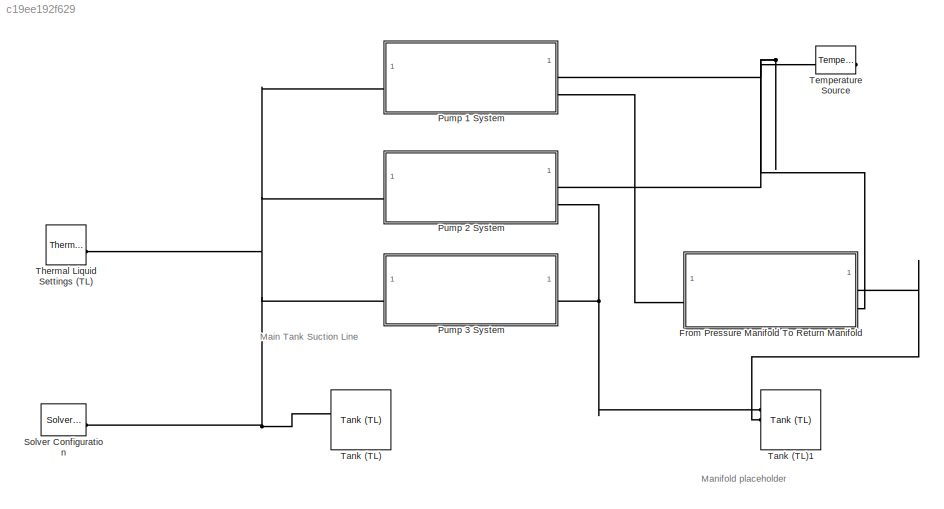
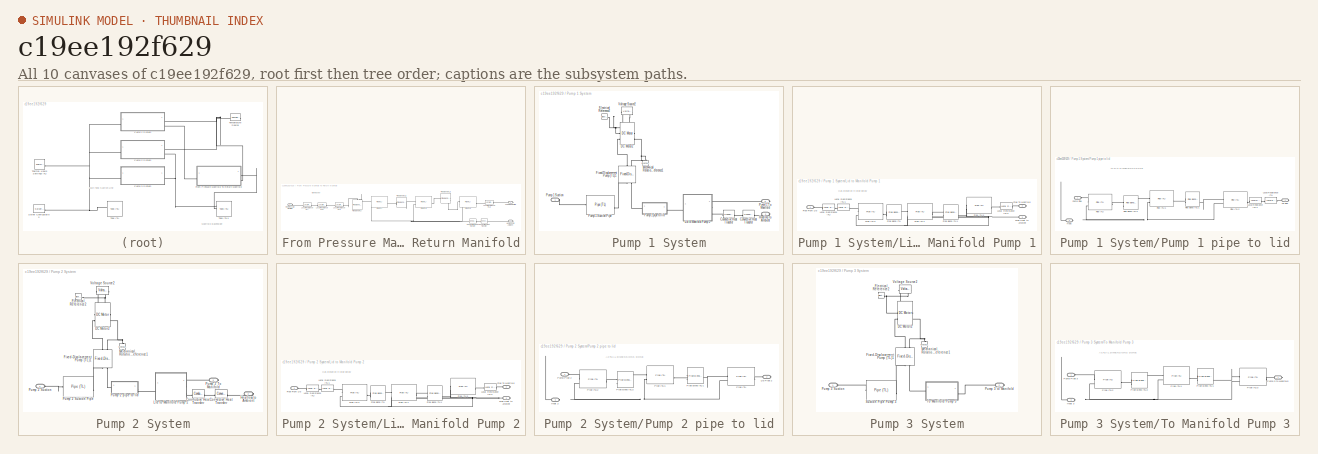
[diagram: thumbnail index - all 10 canvases of the model, root first then tree order]
MODEL slx_c19ee192f629
KIND model
CONFIG AbsTol = 1e-3
CONFIG EnableMultiTasking = off
CONFIG FixedStep = auto
CONFIG MaxStep = auto
CONFIG MinStep = auto
CONFIG RelTol = 1e-3
CONFIG SampleTimeConstraint = Unconstrained
CONFIG SolverName = VariableStepAuto
CONFIG StartTime = 0.0
CONFIG StopTime = 100
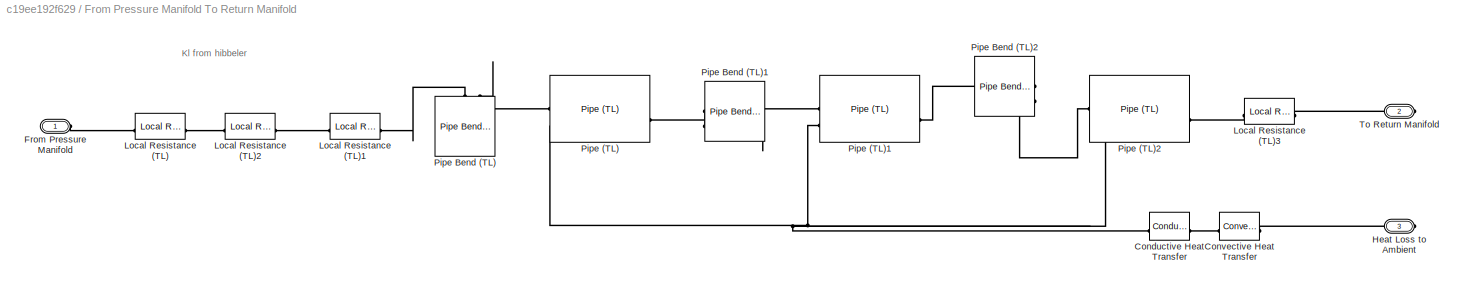
BLOCK [SubSystem] From Pressure Manifold To Return Manifold
BLOCK [Reference] From Pressure Manifold To Return Manifold/Conductive Heat Transfer  REF=fl_lib/Thermal/Thermal Elements/Conductive Heat
Transfer
  SourceBlock = fl_lib/Thermal/Thermal Elements/Conductive Heat\nTransfer
  SourceType = Conductive Heat\nTransfer
BLOCK [Reference] From Pressure Manifold To Return Manifold/Convective Heat Transfer  REF=fl_lib/Thermal/Thermal Elements/Convective Heat
Transfer
  SourceBlock = fl_lib/Thermal/Thermal Elements/Convective Heat\nTransfer
  SourceType = Convective Heat\nTransfer
BLOCK [PMIOPort] From Pressure Manifold To Return Manifold/From Pressure Manifold
  Side = Left
BLOCK [PMIOPort] From Pressure Manifold To Return Manifold/Heat Loss to Ambient
  NameLocation = top
  Port = 3
  Side = Right
BLOCK [Reference] From Pressure Manifold To Return Manifold/Local Resistance (TL)  REF=SimscapeFluids_lib/Thermal Liquid/Pipes & Fittings/Local Resistance
(TL)
  SourceBlock = SimscapeFluids_lib/Thermal Liquid/Pipes & Fittings/Local Resistance\n(TL)
  SourceType = Local Resistance\n(TL)
BLOCK [Reference] From Pressure Manifold To Return Manifold/Local Resistance (TL)1  REF=SimscapeFluids_lib/Thermal Liquid/Pipes & Fittings/Local Resistance
(TL)
  SourceBlock = SimscapeFluids_lib/Thermal Liquid/Pipes & Fittings/Local Resistance\n(TL)
  SourceType = Local Resistance\n(TL)
BLOCK [Reference] From Pressure Manifold To Return Manifold/Local Resistance (TL)2  REF=SimscapeFluids_lib/Thermal Liquid/Pipes & Fittings/Local Resistance
(TL)
  SourceBlock = SimscapeFluids_lib/Thermal Liquid/Pipes & Fittings/Local Resistance\n(TL)
  SourceType = Local Resistance\n(TL)
BLOCK [Reference] From Pressure Manifold To Return Manifold/Local Resistance (TL)3  REF=SimscapeFluids_lib/Thermal Liquid/Pipes & Fittings/Local Resistance
(TL)
  SourceBlock = SimscapeFluids_lib/Thermal Liquid/Pipes & Fittings/Local Resistance\n(TL)
  SourceType = Local Resistance\n(TL)
BLOCK [Reference] From Pressure Manifold To Return Manifold/Pipe (TL)  REF=SimscapeFluids_lib/Thermal Liquid/Pipes & Fittings/Pipe (TL)
  SourceBlock = SimscapeFluids_lib/Thermal Liquid/Pipes & Fittings/Pipe (TL)
  SourceType = Pipe (TL)
BLOCK [Reference] From Pressure Manifold To Return Manifold/Pipe (TL)1  REF=SimscapeFluids_lib/Thermal Liquid/Pipes & Fittings/Pipe (TL)
  SourceBlock = SimscapeFluids_lib/Thermal Liquid/Pipes & Fittings/Pipe (TL)
  SourceType = Pipe (TL)
BLOCK [Reference] From Pressure Manifold To Return Manifold/Pipe (TL)2  REF=SimscapeFluids_lib/Thermal Liquid/Pipes & Fittings/Pipe (TL)
  SourceBlock = SimscapeFluids_lib/Thermal Liquid/Pipes & Fittings/Pipe (TL)
  SourceType = Pipe (TL)
BLOCK [Reference] From Pressure Manifold To Return Manifold/Pipe Bend (TL)  REF=SimscapeFluids_lib/Thermal Liquid/Pipes & Fittings/Pipe Bend (TL)
  NameLocation = left
  SourceBlock = SimscapeFluids_lib/Thermal Liquid/Pipes & Fittings/Pipe Bend (TL)
  SourceType = Pipe Bend (TL)
BLOCK [Reference] From Pressure Manifold To Return Manifold/Pipe Bend (TL)1  REF=SimscapeFluids_lib/Thermal Liquid/Pipes & Fittings/Pipe Bend (TL)
  SourceBlock = SimscapeFluids_lib/Thermal Liquid/Pipes & Fittings/Pipe Bend (TL)
  SourceType = Pipe Bend (TL)
BLOCK [Reference] From Pressure Manifold To Return Manifold/Pipe Bend (TL)2  REF=SimscapeFluids_lib/Thermal Liquid/Pipes & Fittings/Pipe Bend (TL)
  NameLocation = top
  SourceBlock = SimscapeFluids_lib/Thermal Liquid/Pipes & Fittings/Pipe Bend (TL)
  SourceType = Pipe Bend (TL)
BLOCK [PMIOPort] From Pressure Manifold To Return Manifold/To Return Manifold
  NameLocation = top
  Port = 2
  Side = Right
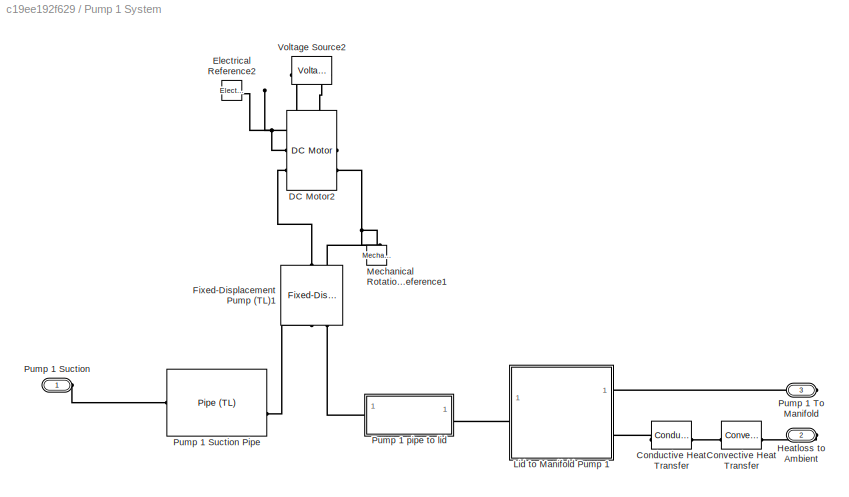
BLOCK [SubSystem] Pump 1 System
BLOCK [Reference] Pump 1 System/Conductive Heat Transfer  REF=fl_lib/Thermal/Thermal Elements/Conductive Heat
Transfer
  SourceBlock = fl_lib/Thermal/Thermal Elements/Conductive Heat\nTransfer
  SourceType = Conductive Heat\nTransfer
BLOCK [Reference] Pump 1 System/Convective Heat Transfer  REF=fl_lib/Thermal/Thermal Elements/Convective Heat
Transfer
  SourceBlock = fl_lib/Thermal/Thermal Elements/Convective Heat\nTransfer
  SourceType = Convective Heat\nTransfer
BLOCK [Reference] Pump 1 System/DC Motor2  REF=ee_lib/Electromechanical/Brushed Motors/DC Motor
  SourceBlock = ee_lib/Electromechanical/Brushed Motors/DC Motor
  SourceType = DC Motor
BLOCK [Reference] Pump 1 System/Electrical Reference2  REF=fl_lib/Electrical/Electrical Elements/Electrical Reference
  SourceBlock = fl_lib/Electrical/Electrical Elements/Electrical Reference
  SourceType = Electrical Reference
BLOCK [Reference] Pump 1 System/Fixed-Displacement Pump (TL)1  REF=SimscapeFluids_lib/Thermal Liquid/Pumps & Motors/Fixed-Displacement
Pump (TL)
  NameLocation = left
  SourceBlock = SimscapeFluids_lib/Thermal Liquid/Pumps & Motors/Fixed-Displacement\nPump (TL)
  SourceType = Fixed-Displacement\nPump (TL)
BLOCK [PMIOPort] Pump 1 System/Heatloss to Ambient
  Port = 2
  Side = Right
BLOCK [SubSystem] Pump 1 System/Lid to Manifold Pump 1
BLOCK [Reference] Pump 1 System/Lid to Manifold Pump 1/Local Resistance (TL)  REF=SimscapeFluids_lib/Thermal Liquid/Pipes & Fittings/Local Resistance
(TL)
  SourceBlock = SimscapeFluids_lib/Thermal Liquid/Pipes & Fittings/Local Resistance\n(TL)
  SourceType = Local Resistance\n(TL)
BLOCK [Reference] Pump 1 System/Lid to Manifold Pump 1/Local Resistance (TL)1  REF=SimscapeFluids_lib/Thermal Liquid/Pipes & Fittings/Local Resistance
(TL)
  SourceBlock = SimscapeFluids_lib/Thermal Liquid/Pipes & Fittings/Local Resistance\n(TL)
  SourceType = Local Resistance\n(TL)
BLOCK [Reference] Pump 1 System/Lid to Manifold Pump 1/Local Resistance (TL)2  REF=SimscapeFluids_lib/Thermal Liquid/Pipes & Fittings/Local Resistance
(TL)
  SourceBlock = SimscapeFluids_lib/Thermal Liquid/Pipes & Fittings/Local Resistance\n(TL)
  SourceType = Local Resistance\n(TL)
BLOCK [Reference] Pump 1 System/Lid to Manifold Pump 1/Pipe (TL)1  REF=SimscapeFluids_lib/Thermal Liquid/Pipes & Fittings/Pipe (TL)
  SourceBlock = SimscapeFluids_lib/Thermal Liquid/Pipes & Fittings/Pipe (TL)
  SourceType = Pipe (TL)
BLOCK [Reference] Pump 1 System/Lid to Manifold Pump 1/Pipe (TL)2  REF=SimscapeFluids_lib/Thermal Liquid/Pipes & Fittings/Pipe (TL)
  SourceBlock = SimscapeFluids_lib/Thermal Liquid/Pipes & Fittings/Pipe (TL)
  SourceType = Pipe (TL)
BLOCK [Reference] Pump 1 System/Lid to Manifold Pump 1/Pipe (TL)3  REF=SimscapeFluids_lib/Thermal Liquid/Pipes & Fittings/Pipe (TL)
  SourceBlock = SimscapeFluids_lib/Thermal Liquid/Pipes & Fittings/Pipe (TL)
  SourceType = Pipe (TL)
BLOCK [Reference] Pump 1 System/Lid to Manifold Pump 1/Pipe Bend (TL)  REF=SimscapeFluids_lib/Thermal Liquid/Pipes & Fittings/Pipe Bend (TL)
  SourceBlock = SimscapeFluids_lib/Thermal Liquid/Pipes & Fittings/Pipe Bend (TL)
  SourceType = Pipe Bend (TL)
BLOCK [Reference] Pump 1 System/Lid to Manifold Pump 1/Pipe Bend (TL)1  REF=SimscapeFluids_lib/Thermal Liquid/Pipes & Fittings/Pipe Bend (TL)
  SourceBlock = SimscapeFluids_lib/Thermal Liquid/Pipes & Fittings/Pipe Bend (TL)
  SourceType = Pipe Bend (TL)
BLOCK [PMIOPort] Pump 1 System/Lid to Manifold Pump 1/Pipe From Lid
  Side = Left
BLOCK [PMIOPort] Pump 1 System/Lid to Manifold Pump 1/Pipe Heat to Ambient
  Port = 3
  Side = Right
BLOCK [PMIOPort] Pump 1 System/Lid to Manifold Pump 1/Pipe To Manifold
  Port = 2
  Side = Right
BLOCK [Reference] Pump 1 System/Mechanical Rotational Reference1  REF=fl_lib/Mechanical/Rotational Elements/Mechanical
Rotational Reference
  NameLocation = right
  SourceBlock = fl_lib/Mechanical/Rotational Elements/Mechanical\nRotational Reference
  SourceType = Mechanical\nRotational Reference
BLOCK [PMIOPort] Pump 1 System/Pump 1 Suction
  Side = Left
BLOCK [Reference] Pump 1 System/Pump 1 Suction Pipe  REF=SimscapeFluids_lib/Thermal Liquid/Pipes & Fittings/Pipe (TL)
  SourceBlock = SimscapeFluids_lib/Thermal Liquid/Pipes & Fittings/Pipe (TL)
  SourceType = Pipe (TL)
BLOCK [PMIOPort] Pump 1 System/Pump 1 To Manifold
  Port = 3
  Side = Right
BLOCK [SubSystem] Pump 1 System/Pump 1 pipe to lid
BLOCK [PMIOPort] Pump 1 System/Pump 1 pipe to lid/Heat
  Port = 3
  Side = Left
BLOCK [PMIOPort] Pump 1 System/Pump 1 pipe to lid/Lid Pipe
  Port = 2
  Side = Right
BLOCK [Reference] Pump 1 System/Pump 1 pipe to lid/Local Resistance (TL)  REF=SimscapeFluids_lib/Thermal Liquid/Pipes & Fittings/Local Resistance
(TL)
  SourceBlock = SimscapeFluids_lib/Thermal Liquid/Pipes & Fittings/Local Resistance\n(TL)
  SourceType = Local Resistance\n(TL)
BLOCK [Reference] Pump 1 System/Pump 1 pipe to lid/Local Resistance (TL)1  REF=SimscapeFluids_lib/Thermal Liquid/Pipes & Fittings/Local Resistance
(TL)
  SourceBlock = SimscapeFluids_lib/Thermal Liquid/Pipes & Fittings/Local Resistance\n(TL)
  SourceType = Local Resistance\n(TL)
BLOCK [Reference] Pump 1 System/Pump 1 pipe to lid/Pipe (TL)  REF=SimscapeFluids_lib/Thermal Liquid/Pipes & Fittings/Pipe (TL)
  SourceBlock = SimscapeFluids_lib/Thermal Liquid/Pipes & Fittings/Pipe (TL)
  SourceType = Pipe (TL)
BLOCK [Reference] Pump 1 System/Pump 1 pipe to lid/Pipe (TL)1  REF=SimscapeFluids_lib/Thermal Liquid/Pipes & Fittings/Pipe (TL)
  SourceBlock = SimscapeFluids_lib/Thermal Liquid/Pipes & Fittings/Pipe (TL)
  SourceType = Pipe (TL)
BLOCK [Reference] Pump 1 System/Pump 1 pipe to lid/Pipe (TL)2  REF=SimscapeFluids_lib/Thermal Liquid/Pipes & Fittings/Pipe (TL)
  SourceBlock = SimscapeFluids_lib/Thermal Liquid/Pipes & Fittings/Pipe (TL)
  SourceType = Pipe (TL)
BLOCK [Reference] Pump 1 System/Pump 1 pipe to lid/Pipe Bend (TL)1  REF=SimscapeFluids_lib/Thermal Liquid/Pipes & Fittings/Pipe Bend (TL)
  SourceBlock = SimscapeFluids_lib/Thermal Liquid/Pipes & Fittings/Pipe Bend (TL)
  SourceType = Pipe Bend (TL)
BLOCK [Reference] Pump 1 System/Pump 1 pipe to lid/Pipe Bend (TL)2  REF=SimscapeFluids_lib/Thermal Liquid/Pipes & Fittings/Pipe Bend (TL)
  SourceBlock = SimscapeFluids_lib/Thermal Liquid/Pipes & Fittings/Pipe Bend (TL)
  SourceType = Pipe Bend (TL)
BLOCK [PMIOPort] Pump 1 System/Pump 1 pipe to lid/Pump Pipe
  Side = Left
BLOCK [Reference] Pump 1 System/Voltage Source2  REF=ee_lib/Sources/Voltage Source
  NameLocation = top
  SourceBlock = ee_lib/Sources/Voltage Source
  SourceType = Voltage Source
BLOCK [SubSystem] Pump 2 System
BLOCK [Reference] Pump 2 System/Conductive Heat Transfer  REF=fl_lib/Thermal/Thermal Elements/Conductive Heat
Transfer
  SourceBlock = fl_lib/Thermal/Thermal Elements/Conductive Heat\nTransfer
  SourceType = Conductive Heat\nTransfer
BLOCK [Reference] Pump 2 System/Convective Heat Transfer  REF=fl_lib/Thermal/Thermal Elements/Convective Heat
Transfer
  SourceBlock = fl_lib/Thermal/Thermal Elements/Convective Heat\nTransfer
  SourceType = Convective Heat\nTransfer
BLOCK [Reference] Pump 2 System/DC Motor2  REF=ee_lib/Electromechanical/Brushed Motors/DC Motor
  SourceBlock = ee_lib/Electromechanical/Brushed Motors/DC Motor
  SourceType = DC Motor
BLOCK [Reference] Pump 2 System/Electrical Reference2  REF=fl_lib/Electrical/Electrical Elements/Electrical Reference
  SourceBlock = fl_lib/Electrical/Electrical Elements/Electrical Reference
  SourceType = Electrical Reference
BLOCK [Reference] Pump 2 System/Fixed-Displacement Pump (TL)1  REF=SimscapeFluids_lib/Thermal Liquid/Pumps & Motors/Fixed-Displacement
Pump (TL)
  NameLocation = left
  SourceBlock = SimscapeFluids_lib/Thermal Liquid/Pumps & Motors/Fixed-Displacement\nPump (TL)
  SourceType = Fixed-Displacement\nPump (TL)
BLOCK [PMIOPort] Pump 2 System/Heatloss to Ambient
  Port = 2
  Side = Right
BLOCK [SubSystem] Pump 2 System/Lid to Manifold Pump 2
BLOCK [Reference] Pump 2 System/Lid to Manifold Pump 2/Local Resistance (TL)  REF=SimscapeFluids_lib/Thermal Liquid/Pipes & Fittings/Local Resistance
(TL)
  SourceBlock = SimscapeFluids_lib/Thermal Liquid/Pipes & Fittings/Local Resistance\n(TL)
  SourceType = Local Resistance\n(TL)
BLOCK [Reference] Pump 2 System/Lid to Manifold Pump 2/Local Resistance (TL)1  REF=SimscapeFluids_lib/Thermal Liquid/Pipes & Fittings/Local Resistance
(TL)
  SourceBlock = SimscapeFluids_lib/Thermal Liquid/Pipes & Fittings/Local Resistance\n(TL)
  SourceType = Local Resistance\n(TL)
BLOCK [Reference] Pump 2 System/Lid to Manifold Pump 2/Local Resistance (TL)2  REF=SimscapeFluids_lib/Thermal Liquid/Pipes & Fittings/Local Resistance
(TL)
  SourceBlock = SimscapeFluids_lib/Thermal Liquid/Pipes & Fittings/Local Resistance\n(TL)
  SourceType = Local Resistance\n(TL)
BLOCK [Reference] Pump 2 System/Lid to Manifold Pump 2/Pipe (TL)1  REF=SimscapeFluids_lib/Thermal Liquid/Pipes & Fittings/Pipe (TL)
  SourceBlock = SimscapeFluids_lib/Thermal Liquid/Pipes & Fittings/Pipe (TL)
  SourceType = Pipe (TL)
BLOCK [Reference] Pump 2 System/Lid to Manifold Pump 2/Pipe (TL)2  REF=SimscapeFluids_lib/Thermal Liquid/Pipes & Fittings/Pipe (TL)
  SourceBlock = SimscapeFluids_lib/Thermal Liquid/Pipes & Fittings/Pipe (TL)
  SourceType = Pipe (TL)
BLOCK [Reference] Pump 2 System/Lid to Manifold Pump 2/Pipe (TL)3  REF=SimscapeFluids_lib/Thermal Liquid/Pipes & Fittings/Pipe (TL)
  SourceBlock = SimscapeFluids_lib/Thermal Liquid/Pipes & Fittings/Pipe (TL)
  SourceType = Pipe (TL)
BLOCK [Reference] Pump 2 System/Lid to Manifold Pump 2/Pipe Bend (TL)  REF=SimscapeFluids_lib/Thermal Liquid/Pipes & Fittings/Pipe Bend (TL)
  SourceBlock = SimscapeFluids_lib/Thermal Liquid/Pipes & Fittings/Pipe Bend (TL)
  SourceType = Pipe Bend (TL)
BLOCK [Reference] Pump 2 System/Lid to Manifold Pump 2/Pipe Bend (TL)1  REF=SimscapeFluids_lib/Thermal Liquid/Pipes & Fittings/Pipe Bend (TL)
  SourceBlock = SimscapeFluids_lib/Thermal Liquid/Pipes & Fittings/Pipe Bend (TL)
  SourceType = Pipe Bend (TL)
BLOCK [PMIOPort] Pump 2 System/Lid to Manifold Pump 2/Pipe From Lid
  Side = Left
BLOCK [PMIOPort] Pump 2 System/Lid to Manifold Pump 2/Pipe Heat to Ambient
  Port = 3
  Side = Right
BLOCK [PMIOPort] Pump 2 System/Lid to Manifold Pump 2/Pipe To Manifold
  Port = 2
  Side = Right
BLOCK [Reference] Pump 2 System/Mechanical Rotational Reference1  REF=fl_lib/Mechanical/Rotational Elements/Mechanical
Rotational Reference
  NameLocation = right
  SourceBlock = fl_lib/Mechanical/Rotational Elements/Mechanical\nRotational Reference
  SourceType = Mechanical\nRotational Reference
BLOCK [PMIOPort] Pump 2 System/Pump 2 Suction
  Side = Left
BLOCK [Reference] Pump 2 System/Pump 2 Suction Pipe  REF=SimscapeFluids_lib/Thermal Liquid/Pipes & Fittings/Pipe (TL)
  SourceBlock = SimscapeFluids_lib/Thermal Liquid/Pipes & Fittings/Pipe (TL)
  SourceType = Pipe (TL)
BLOCK [PMIOPort] Pump 2 System/Pump 2 To Manifold
  Port = 3
  Side = Right
BLOCK [SubSystem] Pump 2 System/Pump 2 pipe to lid
BLOCK [PMIOPort] Pump 2 System/Pump 2 pipe to lid/Heat 2
  Port = 3
  Side = Left
BLOCK [PMIOPort] Pump 2 System/Pump 2 pipe to lid/Lid Pipe 2
  Port = 2
  Side = Right
BLOCK [Reference] Pump 2 System/Pump 2 pipe to lid/Pipe (TL)  REF=SimscapeFluids_lib/Thermal Liquid/Pipes & Fittings/Pipe (TL)
  SourceBlock = SimscapeFluids_lib/Thermal Liquid/Pipes & Fittings/Pipe (TL)
  SourceType = Pipe (TL)
BLOCK [Reference] Pump 2 System/Pump 2 pipe to lid/Pipe (TL)1  REF=SimscapeFluids_lib/Thermal Liquid/Pipes & Fittings/Pipe (TL)
  SourceBlock = SimscapeFluids_lib/Thermal Liquid/Pipes & Fittings/Pipe (TL)
  SourceType = Pipe (TL)
BLOCK [Reference] Pump 2 System/Pump 2 pipe to lid/Pipe (TL)2  REF=SimscapeFluids_lib/Thermal Liquid/Pipes & Fittings/Pipe (TL)
  SourceBlock = SimscapeFluids_lib/Thermal Liquid/Pipes & Fittings/Pipe (TL)
  SourceType = Pipe (TL)
BLOCK [Reference] Pump 2 System/Pump 2 pipe to lid/Pipe Bend (TL)1  REF=SimscapeFluids_lib/Thermal Liquid/Pipes & Fittings/Pipe Bend (TL)
  SourceBlock = SimscapeFluids_lib/Thermal Liquid/Pipes & Fittings/Pipe Bend (TL)
  SourceType = Pipe Bend (TL)
BLOCK [Reference] Pump 2 System/Pump 2 pipe to lid/Pipe Bend (TL)2  REF=SimscapeFluids_lib/Thermal Liquid/Pipes & Fittings/Pipe Bend (TL)
  SourceBlock = SimscapeFluids_lib/Thermal Liquid/Pipes & Fittings/Pipe Bend (TL)
  SourceType = Pipe Bend (TL)
BLOCK [PMIOPort] Pump 2 System/Pump 2 pipe to lid/Pump Pipe 2
  Side = Left
BLOCK [Reference] Pump 2 System/Voltage Source2  REF=ee_lib/Sources/Voltage Source
  NameLocation = top
  SourceBlock = ee_lib/Sources/Voltage Source
  SourceType = Voltage Source
BLOCK [SubSystem] Pump 3 System
BLOCK [Reference] Pump 3 System/DC Motor2  REF=ee_lib/Electromechanical/Brushed Motors/DC Motor
  SourceBlock = ee_lib/Electromechanical/Brushed Motors/DC Motor
  SourceType = DC Motor
BLOCK [Reference] Pump 3 System/Electrical Reference2  REF=fl_lib/Electrical/Electrical Elements/Electrical Reference
  SourceBlock = fl_lib/Electrical/Electrical Elements/Electrical Reference
  SourceType = Electrical Reference
BLOCK [Reference] Pump 3 System/Fixed-Displacement Pump (TL)1  REF=SimscapeFluids_lib/Thermal Liquid/Pumps & Motors/Fixed-Displacement
Pump (TL)
  NameLocation = left
  SourceBlock = SimscapeFluids_lib/Thermal Liquid/Pumps & Motors/Fixed-Displacement\nPump (TL)
  SourceType = Fixed-Displacement\nPump (TL)
BLOCK [Reference] Pump 3 System/Mechanical Rotational Reference1  REF=fl_lib/Mechanical/Rotational Elements/Mechanical
Rotational Reference
  NameLocation = right
  SourceBlock = fl_lib/Mechanical/Rotational Elements/Mechanical\nRotational Reference
  SourceType = Mechanical\nRotational Reference
BLOCK [PMIOPort] Pump 3 System/Pump 3 Suction
  Side = Left
BLOCK [PMIOPort] Pump 3 System/Pump 3 to Manifold
  Port = 2
  Side = Right
BLOCK [Reference] Pump 3 System/Suction Pipe Pump 3  REF=SimscapeFluids_lib/Thermal Liquid/Pipes & Fittings/Pipe (TL)
  SourceBlock = SimscapeFluids_lib/Thermal Liquid/Pipes & Fittings/Pipe (TL)
  SourceType = Pipe (TL)
BLOCK [SubSystem] Pump 3 System/To Manifold Pump 3
BLOCK [PMIOPort] Pump 3 System/To Manifold Pump 3/Heat 3
  Port = 3
  Side = Left
BLOCK [Reference] Pump 3 System/To Manifold Pump 3/Pipe (TL)1  REF=SimscapeFluids_lib/Thermal Liquid/Pipes & Fittings/Pipe (TL)
  SourceBlock = SimscapeFluids_lib/Thermal Liquid/Pipes & Fittings/Pipe (TL)
  SourceType = Pipe (TL)
BLOCK [Reference] Pump 3 System/To Manifold Pump 3/Pipe (TL)2  REF=SimscapeFluids_lib/Thermal Liquid/Pipes & Fittings/Pipe (TL)
  SourceBlock = SimscapeFluids_lib/Thermal Liquid/Pipes & Fittings/Pipe (TL)
  SourceType = Pipe (TL)
BLOCK [Reference] Pump 3 System/To Manifold Pump 3/Pipe (TL)3  REF=SimscapeFluids_lib/Thermal Liquid/Pipes & Fittings/Pipe (TL)
  SourceBlock = SimscapeFluids_lib/Thermal Liquid/Pipes & Fittings/Pipe (TL)
  SourceType = Pipe (TL)
BLOCK [Reference] Pump 3 System/To Manifold Pump 3/Pipe Bend (TL)1  REF=SimscapeFluids_lib/Thermal Liquid/Pipes & Fittings/Pipe Bend (TL)
  SourceBlock = SimscapeFluids_lib/Thermal Liquid/Pipes & Fittings/Pipe Bend (TL)
  SourceType = Pipe Bend (TL)
BLOCK [Reference] Pump 3 System/To Manifold Pump 3/Pipe Bend (TL)2  REF=SimscapeFluids_lib/Thermal Liquid/Pipes & Fittings/Pipe Bend (TL)
  SourceBlock = SimscapeFluids_lib/Thermal Liquid/Pipes & Fittings/Pipe Bend (TL)
  SourceType = Pipe Bend (TL)
BLOCK [PMIOPort] Pump 3 System/To Manifold Pump 3/Pump 3 to Manifold
  Port = 2
  Side = Right
BLOCK [PMIOPort] Pump 3 System/To Manifold Pump 3/Pump Pipe 3
  Side = Left
BLOCK [Reference] Pump 3 System/Voltage Source2  REF=ee_lib/Sources/Voltage Source
  NameLocation = top
  SourceBlock = ee_lib/Sources/Voltage Source
  SourceType = Voltage Source
BLOCK [Reference] Solver Configuration  REF=nesl_utility/Solver
Configuration
  SourceBlock = nesl_utility/Solver\nConfiguration
  SourceType = Solver\nConfiguration
BLOCK [Reference] Tank (TL)  REF=SimscapeFluids_lib/Thermal Liquid/Tanks & Accumulators/Tank (TL)
  SourceBlock = SimscapeFluids_lib/Thermal Liquid/Tanks & Accumulators/Tank (TL)
  SourceType = Tank (TL)
BLOCK [Reference] Tank (TL)1  REF=SimscapeFluids_lib/Thermal Liquid/Tanks & Accumulators/Tank (TL)
  SourceBlock = SimscapeFluids_lib/Thermal Liquid/Tanks & Accumulators/Tank (TL)
  SourceType = Tank (TL)
BLOCK [Reference] Temperature Source  REF=fl_lib/Thermal/Thermal Sources/Temperature Source
  NameLocation = top
  SourceBlock = fl_lib/Thermal/Thermal Sources/Temperature Source
  SourceType = Temperature Source
BLOCK [Reference] Thermal Liquid Settings (TL)  REF=fl_lib/Thermal Liquid/Utilities/Thermal Liquid
Settings (TL)
  SourceBlock = fl_lib/Thermal Liquid/Utilities/Thermal Liquid\nSettings (TL)
  SourceType = Thermal Liquid\nSettings (TL)
ANNOTATION (root): Main Tank Suction Line
ANNOTATION (root): Manifold placeholder
ANNOTATION From Pressure Manifold To Return Manifold: Kl from hibbeler
ANNOTATION Pump 1 System/Lid to Manifold Pump 1: Has elevation in pipe below
ANNOTATION Pump 1 System/Pump 1 pipe to lid: ACTUAL DIMENSIONS DONE
ANNOTATION Pump 2 System/Lid to Manifold Pump 2: Has elevation in pipe below
ANNOTATION Pump 2 System/Pump 2 pipe to lid: ACTUAL DIMENSIONS DONE
ANNOTATION Pump 3 System/To Manifold Pump 3: ACTUAL DIMENSIONS DONE
PNET net1: From Pressure Manifold To Return Manifold/Conductive Heat Transfer:LConn1 -- From Pressure Manifold To Return Manifold/Pipe (TL)1:LConn2 -- From Pressure Manifold To Return Manifold/Pipe (TL)2:LConn2 -- From Pressure Manifold To Return Manifold/Pipe (TL):LConn2
PLINE From Pressure Manifold To Return Manifold/Conductive Heat Transfer:RConn1 -- From Pressure Manifold To Return Manifold/Convective Heat Transfer:LConn1
PLINE From Pressure Manifold To Return Manifold/Convective Heat Transfer:RConn1 -- From Pressure Manifold To Return Manifold/Heat Loss to Ambient:RConn1
PLINE From Pressure Manifold To Return Manifold/From Pressure Manifold:RConn1 -- From Pressure Manifold To Return Manifold/Local Resistance (TL):LConn1
PLINE From Pressure Manifold To Return Manifold/Local Resistance (TL)1:LConn1 -- From Pressure Manifold To Return Manifold/Local Resistance (TL)2:RConn1
PLINE From Pressure Manifold To Return Manifold/Local Resistance (TL)1:RConn1 -- From Pressure Manifold To Return Manifold/Pipe Bend (TL):LConn1
PLINE From Pressure Manifold To Return Manifold/Local Resistance (TL)2:LConn1 -- From Pressure Manifold To Return Manifold/Local Resistance (TL):RConn1
PLINE From Pressure Manifold To Return Manifold/Local Resistance (TL)3:LConn1 -- From Pressure Manifold To Return Manifold/Pipe (TL)2:RConn1
PLINE From Pressure Manifold To Return Manifold/Local Resistance (TL)3:RConn1 -- From Pressure Manifold To Return Manifold/To Return Manifold:RConn1
PLINE From Pressure Manifold To Return Manifold/Pipe (TL)1:LConn1 -- From Pressure Manifold To Return Manifold/Pipe Bend (TL)1:LConn2
PLINE From Pressure Manifold To Return Manifold/Pipe (TL)1:RConn1 -- From Pressure Manifold To Return Manifold/Pipe Bend (TL)2:LConn1
PLINE From Pressure Manifold To Return Manifold/Pipe (TL)2:LConn1 -- From Pressure Manifold To Return Manifold/Pipe Bend (TL)2:LConn2
PLINE From Pressure Manifold To Return Manifold/Pipe (TL):LConn1 -- From Pressure Manifold To Return Manifold/Pipe Bend (TL):LConn2
PLINE From Pressure Manifold To Return Manifold/Pipe (TL):RConn1 -- From Pressure Manifold To Return Manifold/Pipe Bend (TL)1:LConn1
PLINE From Pressure Manifold To Return Manifold:LConn1 -- Pump 1 System:RConn2
PLINE From Pressure Manifold To Return Manifold:RConn1 -- Tank (TL)1:LConn2
PNET net2: From Pressure Manifold To Return Manifold:RConn2 -- Pump 1 System:RConn1 -- Pump 2 System:RConn1 -- Temperature Source:LConn1
PLINE Pump 1 System/Conductive Heat Transfer:LConn1 -- Pump 1 System/Lid to Manifold Pump 1:RConn2
PLINE Pump 1 System/Conductive Heat Transfer:RConn1 -- Pump 1 System/Convective Heat Transfer:LConn1
PLINE Pump 1 System/Convective Heat Transfer:RConn1 -- Pump 1 System/Heatloss to Ambient:RConn1
PNET net3: Pump 1 System/DC Motor2:LConn1 -- Pump 1 System/Electrical Reference2:LConn1 -- Pump 1 System/Voltage Source2:LConn1
PLINE Pump 1 System/DC Motor2:LConn2 -- Pump 1 System/Fixed-Displacement Pump (TL)1:RConn1
PLINE Pump 1 System/DC Motor2:RConn1 -- Pump 1 System/Voltage Source2:RConn1
PNET net4: Pump 1 System/DC Motor2:RConn2 -- Pump 1 System/Fixed-Displacement Pump (TL)1:RConn2 -- Pump 1 System/Mechanical Rotational Reference1:LConn1
PLINE Pump 1 System/Fixed-Displacement Pump (TL)1:LConn1 -- Pump 1 System/Pump 1 Suction Pipe:RConn1
PLINE Pump 1 System/Fixed-Displacement Pump (TL)1:LConn2 -- Pump 1 System/Pump 1 pipe to lid:LConn1
PLINE Pump 1 System/Lid to Manifold Pump 1/Local Resistance (TL)1:LConn1 -- Pump 1 System/Lid to Manifold Pump 1/Local Resistance (TL):RConn1
PLINE Pump 1 System/Lid to Manifold Pump 1/Local Resistance (TL)1:RConn1 -- Pump 1 System/Lid to Manifold Pump 1/Pipe (TL)2:LConn1
PLINE Pump 1 System/Lid to Manifold Pump 1/Local Resistance (TL)2:LConn1 -- Pump 1 System/Lid to Manifold Pump 1/Pipe (TL)3:RConn1
PLINE Pump 1 System/Lid to Manifold Pump 1/Local Resistance (TL)2:RConn1 -- Pump 1 System/Lid to Manifold Pump 1/Pipe To Manifold:RConn1
PLINE Pump 1 System/Lid to Manifold Pump 1/Local Resistance (TL):LConn1 -- Pump 1 System/Lid to Manifold Pump 1/Pipe From Lid:RConn1
PLINE Pump 1 System/Lid to Manifold Pump 1/Pipe (TL)1:LConn1 -- Pump 1 System/Lid to Manifold Pump 1/Pipe Bend (TL):LConn2
PNET net5: Pump 1 System/Lid to Manifold Pump 1/Pipe (TL)1:LConn2 -- Pump 1 System/Lid to Manifold Pump 1/Pipe (TL)2:LConn2 -- Pump 1 System/Lid to Manifold Pump 1/Pipe (TL)3:LConn2 -- Pump 1 System/Lid to Manifold Pump 1/Pipe Heat to Ambient:RConn1
PLINE Pump 1 System/Lid to Manifold Pump 1/Pipe (TL)1:RConn1 -- Pump 1 System/Lid to Manifold Pump 1/Pipe Bend (TL)1:LConn1
PLINE Pump 1 System/Lid to Manifold Pump 1/Pipe (TL)2:RConn1 -- Pump 1 System/Lid to Manifold Pump 1/Pipe Bend (TL):LConn1
PLINE Pump 1 System/Lid to Manifold Pump 1/Pipe (TL)3:LConn1 -- Pump 1 System/Lid to Manifold Pump 1/Pipe Bend (TL)1:LConn2
PLINE Pump 1 System/Lid to Manifold Pump 1:LConn1 -- Pump 1 System/Pump 1 pipe to lid:RConn1
PLINE Pump 1 System/Lid to Manifold Pump 1:RConn1 -- Pump 1 System/Pump 1 To Manifold:RConn1
PLINE Pump 1 System/Pump 1 Suction Pipe:LConn1 -- Pump 1 System/Pump 1 Suction:RConn1
PNET net6: Pump 1 System/Pump 1 pipe to lid/Heat:RConn1 -- Pump 1 System/Pump 1 pipe to lid/Pipe (TL)1:LConn2 -- Pump 1 System/Pump 1 pipe to lid/Pipe (TL)2:LConn2 -- Pump 1 System/Pump 1 pipe to lid/Pipe (TL):LConn2
PLINE Pump 1 System/Pump 1 pipe to lid/Lid Pipe:RConn1 -- Pump 1 System/Pump 1 pipe to lid/Local Resistance (TL):RConn1
PLINE Pump 1 System/Pump 1 pipe to lid/Local Resistance (TL)1:LConn1 -- Pump 1 System/Pump 1 pipe to lid/Pipe (TL)2:RConn1
PLINE Pump 1 System/Pump 1 pipe to lid/Local Resistance (TL)1:RConn1 -- Pump 1 System/Pump 1 pipe to lid/Local Resistance (TL):LConn1
PLINE Pump 1 System/Pump 1 pipe to lid/Pipe (TL)1:LConn1 -- Pump 1 System/Pump 1 pipe to lid/Pipe Bend (TL)2:LConn2
PLINE Pump 1 System/Pump 1 pipe to lid/Pipe (TL)1:RConn1 -- Pump 1 System/Pump 1 pipe to lid/Pipe Bend (TL)1:LConn1
PLINE Pump 1 System/Pump 1 pipe to lid/Pipe (TL)2:LConn1 -- Pump 1 System/Pump 1 pipe to lid/Pipe Bend (TL)1:LConn2
PLINE Pump 1 System/Pump 1 pipe to lid/Pipe (TL):LConn1 -- Pump 1 System/Pump 1 pipe to lid/Pump Pipe:RConn1
PLINE Pump 1 System/Pump 1 pipe to lid/Pipe (TL):RConn1 -- Pump 1 System/Pump 1 pipe to lid/Pipe Bend (TL)2:LConn1
PNET net7: Pump 1 System:LConn1 -- Pump 2 System:LConn1 -- Pump 3 System:LConn1 -- Solver Configuration:RConn1 -- Tank (TL):LConn1 -- Thermal Liquid Settings (TL):RConn1
PLINE Pump 2 System/Conductive Heat Transfer:LConn1 -- Pump 2 System/Lid to Manifold Pump 2:RConn2
PLINE Pump 2 System/Conductive Heat Transfer:RConn1 -- Pump 2 System/Convective Heat Transfer:LConn1
PLINE Pump 2 System/Convective Heat Transfer:RConn1 -- Pump 2 System/Heatloss to Ambient:RConn1
PNET net8: Pump 2 System/DC Motor2:LConn1 -- Pump 2 System/Electrical Reference2:LConn1 -- Pump 2 System/Voltage Source2:LConn1
PLINE Pump 2 System/DC Motor2:LConn2 -- Pump 2 System/Fixed-Displacement Pump (TL)1:RConn1
PLINE Pump 2 System/DC Motor2:RConn1 -- Pump 2 System/Voltage Source2:RConn1
PNET net9: Pump 2 System/DC Motor2:RConn2 -- Pump 2 System/Fixed-Displacement Pump (TL)1:RConn2 -- Pump 2 System/Mechanical Rotational Reference1:LConn1
PLINE Pump 2 System/Fixed-Displacement Pump (TL)1:LConn1 -- Pump 2 System/Pump 2 Suction Pipe:RConn1
PLINE Pump 2 System/Fixed-Displacement Pump (TL)1:LConn2 -- Pump 2 System/Pump 2 pipe to lid:LConn1
PLINE Pump 2 System/Lid to Manifold Pump 2/Local Resistance (TL)1:LConn1 -- Pump 2 System/Lid to Manifold Pump 2/Local Resistance (TL):RConn1
PLINE Pump 2 System/Lid to Manifold Pump 2/Local Resistance (TL)1:RConn1 -- Pump 2 System/Lid to Manifold Pump 2/Pipe (TL)2:LConn1
PLINE Pump 2 System/Lid to Manifold Pump 2/Local Resistance (TL)2:LConn1 -- Pump 2 System/Lid to Manifold Pump 2/Pipe (TL)3:RConn1
PLINE Pump 2 System/Lid to Manifold Pump 2/Local Resistance (TL)2:RConn1 -- Pump 2 System/Lid to Manifold Pump 2/Pipe To Manifold:RConn1
PLINE Pump 2 System/Lid to Manifold Pump 2/Local Resistance (TL):LConn1 -- Pump 2 System/Lid to Manifold Pump 2/Pipe From Lid:RConn1
PLINE Pump 2 System/Lid to Manifold Pump 2/Pipe (TL)1:LConn1 -- Pump 2 System/Lid to Manifold Pump 2/Pipe Bend (TL):LConn2
PNET net10: Pump 2 System/Lid to Manifold Pump 2/Pipe (TL)1:LConn2 -- Pump 2 System/Lid to Manifold Pump 2/Pipe (TL)2:LConn2 -- Pump 2 System/Lid to Manifold Pump 2/Pipe (TL)3:LConn2 -- Pump 2 System/Lid to Manifold Pump 2/Pipe Heat to Ambient:RConn1
PLINE Pump 2 System/Lid to Manifold Pump 2/Pipe (TL)1:RConn1 -- Pump 2 System/Lid to Manifold Pump 2/Pipe Bend (TL)1:LConn1
PLINE Pump 2 System/Lid to Manifold Pump 2/Pipe (TL)2:RConn1 -- Pump 2 System/Lid to Manifold Pump 2/Pipe Bend (TL):LConn1
PLINE Pump 2 System/Lid to Manifold Pump 2/Pipe (TL)3:LConn1 -- Pump 2 System/Lid to Manifold Pump 2/Pipe Bend (TL)1:LConn2
PLINE Pump 2 System/Lid to Manifold Pump 2:LConn1 -- Pump 2 System/Pump 2 pipe to lid:RConn1
PLINE Pump 2 System/Lid to Manifold Pump 2:RConn1 -- Pump 2 System/Pump 2 To Manifold:RConn1
PLINE Pump 2 System/Pump 2 Suction Pipe:LConn1 -- Pump 2 System/Pump 2 Suction:RConn1
PNET net11: Pump 2 System/Pump 2 pipe to lid/Heat 2:RConn1 -- Pump 2 System/Pump 2 pipe to lid/Pipe (TL)1:LConn2 -- Pump 2 System/Pump 2 pipe to lid/Pipe (TL)2:LConn2 -- Pump 2 System/Pump 2 pipe to lid/Pipe (TL):LConn2
PLINE Pump 2 System/Pump 2 pipe to lid/Lid Pipe 2:RConn1 -- Pump 2 System/Pump 2 pipe to lid/Pipe (TL):RConn1
PLINE Pump 2 System/Pump 2 pipe to lid/Pipe (TL)1:LConn1 -- Pump 2 System/Pump 2 pipe to lid/Pipe Bend (TL)2:LConn2
PLINE Pump 2 System/Pump 2 pipe to lid/Pipe (TL)1:RConn1 -- Pump 2 System/Pump 2 pipe to lid/Pipe Bend (TL)1:LConn1
PLINE Pump 2 System/Pump 2 pipe to lid/Pipe (TL)2:LConn1 -- Pump 2 System/Pump 2 pipe to lid/Pump Pipe 2:RConn1
PLINE Pump 2 System/Pump 2 pipe to lid/Pipe (TL)2:RConn1 -- Pump 2 System/Pump 2 pipe to lid/Pipe Bend (TL)2:LConn1
PLINE Pump 2 System/Pump 2 pipe to lid/Pipe (TL):LConn1 -- Pump 2 System/Pump 2 pipe to lid/Pipe Bend (TL)1:LConn2
PNET net12: Pump 2 System:RConn2 -- Pump 3 System:RConn1 -- Tank (TL)1:LConn1
PNET net13: Pump 3 System/DC Motor2:LConn1 -- Pump 3 System/Electrical Reference2:LConn1 -- Pump 3 System/Voltage Source2:LConn1
PLINE Pump 3 System/DC Motor2:LConn2 -- Pump 3 System/Fixed-Displacement Pump (TL)1:RConn1
PLINE Pump 3 System/DC Motor2:RConn1 -- Pump 3 System/Voltage Source2:RConn1
PNET net14: Pump 3 System/DC Motor2:RConn2 -- Pump 3 System/Fixed-Displacement Pump (TL)1:RConn2 -- Pump 3 System/Mechanical Rotational Reference1:LConn1
PLINE Pump 3 System/Fixed-Displacement Pump (TL)1:LConn1 -- Pump 3 System/Suction Pipe Pump 3:RConn1
PLINE Pump 3 System/Fixed-Displacement Pump (TL)1:LConn2 -- Pump 3 System/To Manifold Pump 3:LConn1
PLINE Pump 3 System/Pump 3 Suction:RConn1 -- Pump 3 System/Suction Pipe Pump 3:LConn1
PLINE Pump 3 System/Pump 3 to Manifold:RConn1 -- Pump 3 System/To Manifold Pump 3:RConn1
PNET net15: Pump 3 System/To Manifold Pump 3/Heat 3:RConn1 -- Pump 3 System/To Manifold Pump 3/Pipe (TL)1:LConn2 -- Pump 3 System/To Manifold Pump 3/Pipe (TL)2:LConn2 -- Pump 3 System/To Manifold Pump 3/Pipe (TL)3:LConn2
PLINE Pump 3 System/To Manifold Pump 3/Pipe (TL)1:LConn1 -- Pump 3 System/To Manifold Pump 3/Pipe Bend (TL)2:LConn2
PLINE Pump 3 System/To Manifold Pump 3/Pipe (TL)1:RConn1 -- Pump 3 System/To Manifold Pump 3/Pipe Bend (TL)1:LConn1
PLINE Pump 3 System/To Manifold Pump 3/Pipe (TL)2:LConn1 -- Pump 3 System/To Manifold Pump 3/Pump Pipe 3:RConn1
PLINE Pump 3 System/To Manifold Pump 3/Pipe (TL)2:RConn1 -- Pump 3 System/To Manifold Pump 3/Pipe Bend (TL)2:LConn1
PLINE Pump 3 System/To Manifold Pump 3/Pipe (TL)3:LConn1 -- Pump 3 System/To Manifold Pump 3/Pipe Bend (TL)1:LConn2
PLINE Pump 3 System/To Manifold Pump 3/Pipe (TL)3:RConn1 -- Pump 3 System/To Manifold Pump 3/Pump 3 to Manifold:RConn1
note: PNET lines group multi-terminal physical nets as a canonical sorted terminal list (undirected conserving connections); 2-terminal nets keep the pairwise PLINE form
